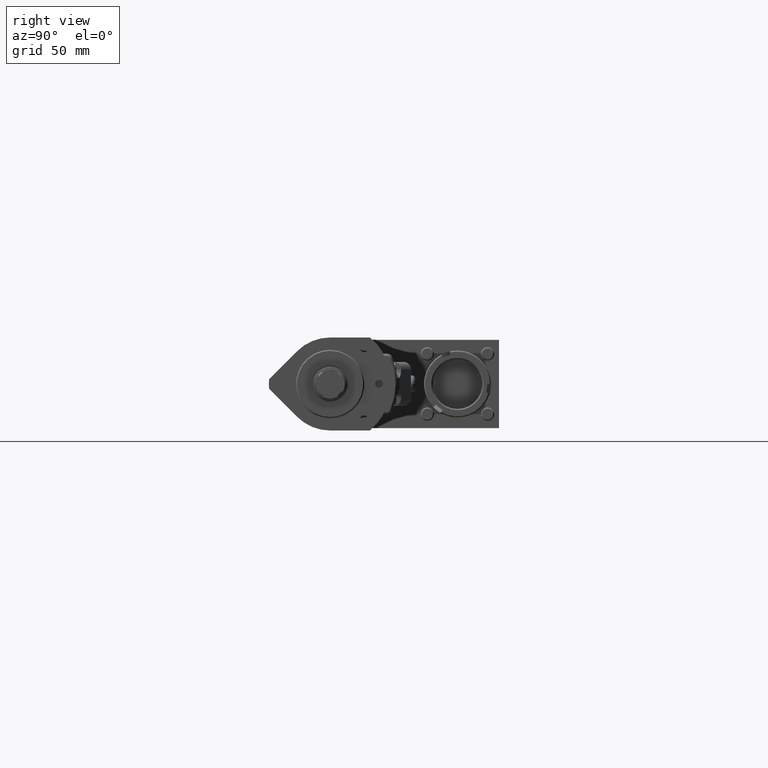
[diagram: clean part render]
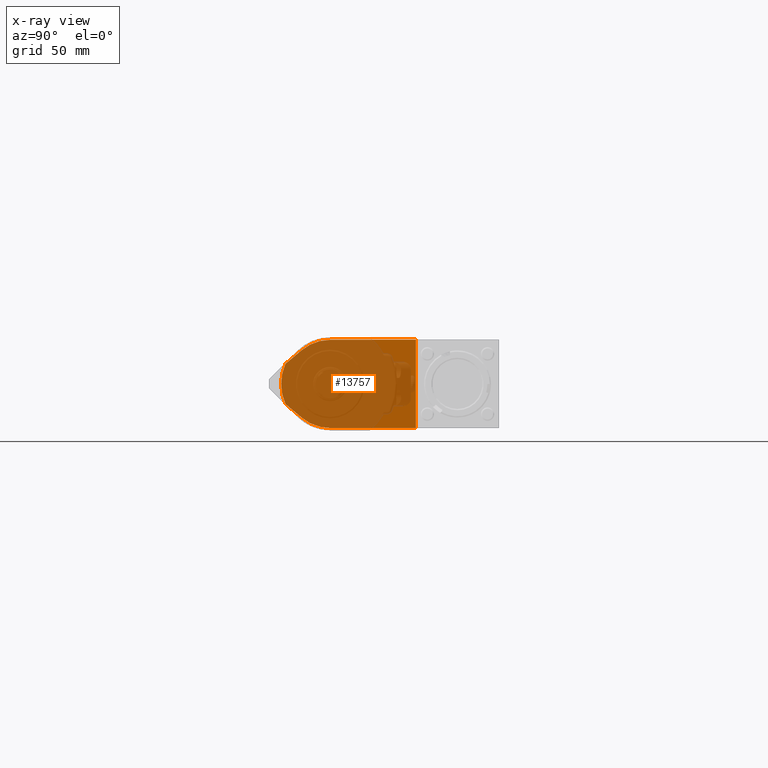
[diagram: x-ray — body ghosted, one internal face saturated and labeled with its STEP entity id]
A machine part, right view, then the same camera in x-ray: the body is ghosted and one INTERNAL B-rep face — a face not visible from any outside direction — is saturated and labeled: STEP entity #13757.
In plain terms, the highlighted planar face has unit normal (-1, 0, 0).
Its self-contained STEP definition (entity closure, byte-faithful):
#347 = CARTESIAN_POINT ( 'NONE',  ( -263.0000000000000000, -0.003797655402365886700, 18.00305142569867200 ) ) ;
#433 = CARTESIAN_POINT ( 'NONE',  ( -263.0000000000000000, -11.56999999999999700, -13.79518553626417100 ) ) ;
#928 = AXIS2_PLACEMENT_3D ( 'NONE', #10912, #4105, #12074 ) ;
#1263 = CARTESIAN_POINT ( 'NONE',  ( -263.0000000000000000, -0.003797655402365887600, -0.003051425698672718600 ) ) ;
#1271 = AXIS2_PLACEMENT_3D ( 'NONE', #1882, #3039, #11021 ) ;
#1882 = CARTESIAN_POINT ( 'NONE',  ( -263.0000000000000000, -0.003797655402366755000, 0.0000000000000000000 ) ) ;
#1989 = ORIENTED_EDGE ( 'NONE', *, *, #14367, .F. ) ;
#2068 = CARTESIAN_POINT ( 'NONE',  ( -263.0000000000000000, 34.99620234459764800, 18.00305142569866100 ) ) ;
#2396 = DIRECTION ( 'NONE',  ( 0.0000000000000000000, 0.0000000000000000000, 1.000000000000000000 ) ) ;
#2423 = DIRECTION ( 'NONE',  ( 0.0000000000000000000, -1.927143832406717100E-016, -1.000000000000000000 ) ) ;
#2616 = CARTESIAN_POINT ( 'NONE',  ( -263.0000000000000000, -11.57000000000000000, 13.79518553626416900 ) ) ;
#3039 = DIRECTION ( 'NONE',  ( -1.000000000000000000, 0.0000000000000000000, 0.0000000000000000000 ) ) ;
#3204 = VERTEX_POINT ( 'NONE', #13957 ) ;
#3244 = CARTESIAN_POINT ( 'NONE',  ( -263.0000000000000000, -18.25000000000000000, 8.189999999999999500 ) ) ;
#3277 = DIRECTION ( 'NONE',  ( 0.0000000000000000000, -1.000000000000000000, -9.912705577010325500E-017 ) ) ;
#3294 = EDGE_CURVE ( 'NONE', #8897, #11504, #13748, .T. ) ;
#3341 = VERTEX_POINT ( 'NONE', #11820 ) ;
#3543 = ORIENTED_EDGE ( 'NONE', *, *, #3294, .F. ) ;
#3581 = CARTESIAN_POINT ( 'NONE',  ( -263.0000000000000000, 34.99620234459764100, -18.00305142569866800 ) ) ;
#3944 = LINE ( 'NONE', #3244, #12311 ) ;
#4105 = DIRECTION ( 'NONE',  ( -1.000000000000000000, 0.0000000000000000000, 0.0000000000000000000 ) ) ;
#4478 = EDGE_CURVE ( 'NONE', #3204, #11275, #6545, .T. ) ;
#4484 = EDGE_LOOP ( 'NONE', ( #5751, #1989, #4582, #11350, #6266, #3543, #6250, #8645 ) ) ;
#4582 = ORIENTED_EDGE ( 'NONE', *, *, #14052, .F. ) ;
#4621 = VECTOR ( 'NONE', #14043, 1000.000000000000000 ) ;
#4739 = EDGE_CURVE ( 'NONE', #10382, #3341, #10107, .T. ) ;
#5242 = AXIS2_PLACEMENT_3D ( 'NONE', #13471, #6633, #14621 ) ;
#5332 = DIRECTION ( 'NONE',  ( 0.0000000000000000000, -0.7660444431189814600, 0.6427876096865351400 ) ) ;
#5751 = ORIENTED_EDGE ( 'NONE', *, *, #4478, .F. ) ;
#5842 = FACE_OUTER_BOUND ( 'NONE', #4484, .T. ) ;
#5958 = EDGE_CURVE ( 'NONE', #11504, #10382, #12406, .T. ) ;
#6250 = ORIENTED_EDGE ( 'NONE', *, *, #12764, .F. ) ;
#6266 = ORIENTED_EDGE ( 'NONE', *, *, #5958, .F. ) ;
#6545 = CIRCLE ( 'NONE', #928, 20.00000000000000000 ) ;
#6633 = DIRECTION ( 'NONE',  ( -1.000000000000000000, 0.0000000000000000000, 0.0000000000000000000 ) ) ;
#7428 = CARTESIAN_POINT ( 'NONE',  ( -263.0000000000000000, -18.25000000000000000, 8.189999999999999500 ) ) ;
#8191 = CARTESIAN_POINT ( 'NONE',  ( -263.0000000000000000, -0.003797655402365886700, 18.00305142569867200 ) ) ;
#8645 = ORIENTED_EDGE ( 'NONE', *, *, #10897, .F. ) ;
#8676 = VERTEX_POINT ( 'NONE', #2616 ) ;
#8897 = VERTEX_POINT ( 'NONE', #8191 ) ;
#9006 = VECTOR ( 'NONE', #2423, 1000.000000000000000 ) ;
#9021 = CARTESIAN_POINT ( 'NONE',  ( -263.0000000000000000, 34.99620234459764100, -18.00305142569866800 ) ) ;
#9202 = LINE ( 'NONE', #13319, #13481 ) ;
#9257 = DIRECTION ( 'NONE',  ( -1.000000000000000000, 0.0000000000000000000, 0.0000000000000000000 ) ) ;
#10107 = LINE ( 'NONE', #9021, #12805 ) ;
#10121 = CIRCLE ( 'NONE', #5242, 18.00000000000000400 ) ;
#10382 = VERTEX_POINT ( 'NONE', #3581 ) ;
#10897 = EDGE_CURVE ( 'NONE', #11275, #8676, #3944, .T. ) ;
#10912 = CARTESIAN_POINT ( 'NONE',  ( -263.0000000000000000, -0.003797655402366755000, 0.0000000000000000000 ) ) ;
#10960 = CIRCLE ( 'NONE', #14289, 18.00000000000000400 ) ;
#11021 = DIRECTION ( 'NONE',  ( 0.0000000000000000000, 0.0000000000000000000, 1.000000000000000000 ) ) ;
#11228 = DIRECTION ( 'NONE',  ( 0.0000000000000000000, 0.7660444431189814600, 0.6427876096865352600 ) ) ;
#11275 = VERTEX_POINT ( 'NONE', #7428 ) ;
#11350 = ORIENTED_EDGE ( 'NONE', *, *, #4739, .F. ) ;
#11504 = VERTEX_POINT ( 'NONE', #2068 ) ;
#11820 = CARTESIAN_POINT ( 'NONE',  ( -263.0000000000000000, -0.003797655402363683200, -18.00305142569867200 ) ) ;
#12074 = DIRECTION ( 'NONE',  ( 0.0000000000000000000, 0.0000000000000000000, 1.000000000000000000 ) ) ;
#12311 = VECTOR ( 'NONE', #11228, 1000.000000000000100 ) ;
#12406 = LINE ( 'NONE', #13845, #9006 ) ;
#12431 = VERTEX_POINT ( 'NONE', #433 ) ;
#12764 = EDGE_CURVE ( 'NONE', #8676, #8897, #10121, .T. ) ;
#12805 = VECTOR ( 'NONE', #3277, 1000.000000000000000 ) ;
#13319 = CARTESIAN_POINT ( 'NONE',  ( -263.0000000000000000, -11.56999999999999700, -13.79518553626417100 ) ) ;
#13471 = CARTESIAN_POINT ( 'NONE',  ( -263.0000000000000000, -0.003797655402365886700, 0.003051425698672718600 ) ) ;
#13481 = VECTOR ( 'NONE', #5332, 1000.000000000000100 ) ;
#13748 = LINE ( 'NONE', #347, #4621 ) ;
#13757 = ADVANCED_FACE ( 'NONE', ( #5842 ), #14405, .F. ) ;
#13845 = CARTESIAN_POINT ( 'NONE',  ( -263.0000000000000000, 34.99620234459764800, 18.00305142569866100 ) ) ;
#13957 = CARTESIAN_POINT ( 'NONE',  ( -263.0000000000000000, -18.24999999999999600, -8.190000000000004800 ) ) ;
#14043 = DIRECTION ( 'NONE',  ( 0.0000000000000000000, 1.000000000000000000, -2.973811673103097200E-016 ) ) ;
#14052 = EDGE_CURVE ( 'NONE', #3341, #12431, #10960, .T. ) ;
#14289 = AXIS2_PLACEMENT_3D ( 'NONE', #1263, #9257, #2396 ) ;
#14367 = EDGE_CURVE ( 'NONE', #12431, #3204, #9202, .T. ) ;
#14405 = PLANE ( 'NONE',  #1271 ) ;
#14621 = DIRECTION ( 'NONE',  ( 0.0000000000000000000, 0.0000000000000000000, 1.000000000000000000 ) ) ;